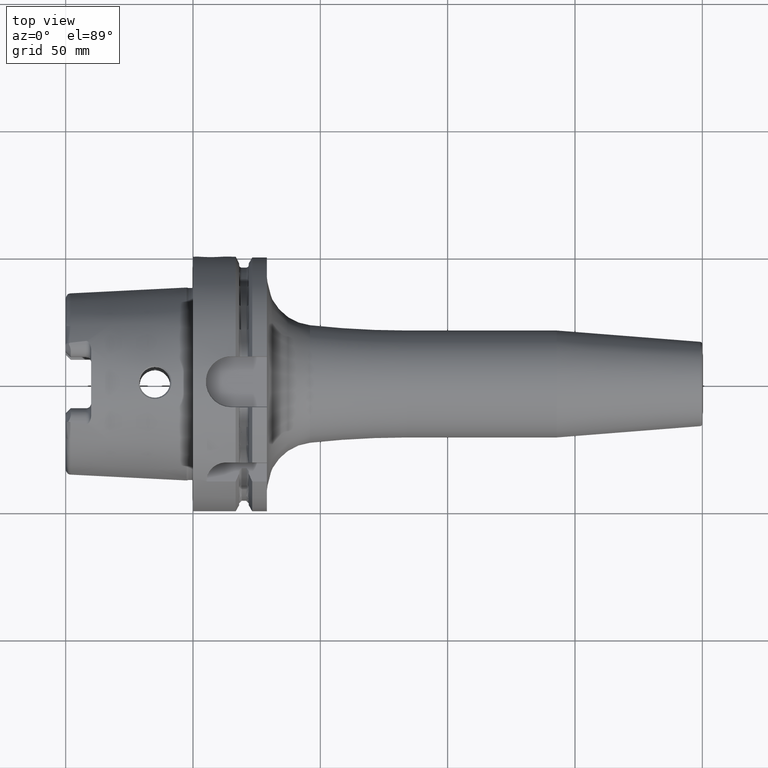
[diagram: clean part render]
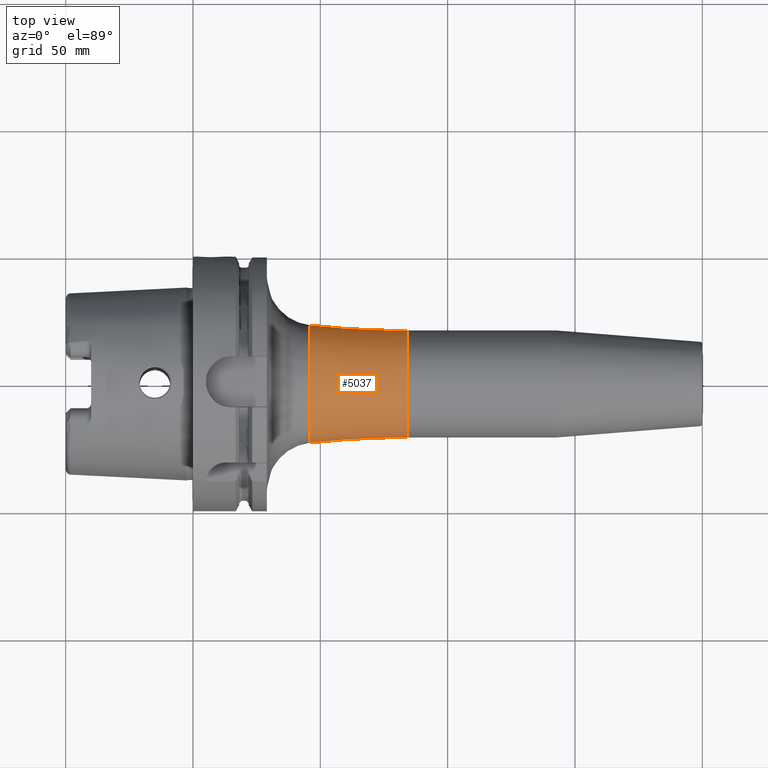
[diagram: same view with one face highlighted and labeled with its STEP entity id]
A machine part, top view. The second image highlights one B-rep face of the part: STEP entity #5037.
In plain terms, the highlighted toroidal blend (fillet) surface has major radius 371 mm and minor (blend) radius 350 mm.
Its self-contained STEP definition (entity closure, byte-faithful):
#1820=CARTESIAN_POINT('',(8.4E1,-3.71E2,-9.086879249673E-14));
#1821=DIRECTION('',(0.E0,0.E0,1.E0));
#1822=DIRECTION('',(0.E0,1.E0,0.E0));
#1823=AXIS2_PLACEMENT_3D('',#1820,#1821,#1822);
#1825=CARTESIAN_POINT('',(8.4E1,3.71E2,4.543439624837E-14));
#1826=DIRECTION('',(0.E0,0.E0,-1.E0));
#1827=DIRECTION('',(0.E0,-1.E0,0.E0));
#1828=AXIS2_PLACEMENT_3D('',#1825,#1826,#1827);
#1830=CARTESIAN_POINT('',(4.593353474320E1,0.E0,0.E0));
#1831=DIRECTION('',(1.E0,0.E0,0.E0));
#1832=DIRECTION('',(0.E0,1.E0,0.E0));
#1833=AXIS2_PLACEMENT_3D('',#1830,#1831,#1832);
#1840=CARTESIAN_POINT('',(8.4E1,0.E0,0.E0));
#1841=DIRECTION('',(1.E0,0.E0,0.E0));
#1842=DIRECTION('',(0.E0,1.E0,0.E0));
#1843=AXIS2_PLACEMENT_3D('',#1840,#1841,#1842);
#3165=CARTESIAN_POINT('',(4.593353474320E1,-2.307623791576E1,0.E0));
#3166=CARTESIAN_POINT('',(4.593353474320E1,2.307623791576E1,0.E0));
#3167=VERTEX_POINT('',#3165);
#3168=VERTEX_POINT('',#3166);
#3173=CARTESIAN_POINT('',(8.4E1,2.1E1,0.E0));
#3174=VERTEX_POINT('',#3173);
#3175=CARTESIAN_POINT('',(8.4E1,-2.1E1,0.E0));
#3176=VERTEX_POINT('',#3175);
#5024=CARTESIAN_POINT('',(8.4E1,0.E0,0.E0));
#5025=DIRECTION('',(1.E0,0.E0,0.E0));
#5026=DIRECTION('',(0.E0,-1.E0,0.E0));
#5027=AXIS2_PLACEMENT_3D('',#5024,#5025,#5026);
#5028=TOROIDAL_SURFACE('',#5027,3.71E2,3.5E2);
#5030=ORIENTED_EDGE('',*,*,#5029,.F.);
#5031=ORIENTED_EDGE('',*,*,#5019,.F.);
#5033=ORIENTED_EDGE('',*,*,#5032,.T.);
#5034=ORIENTED_EDGE('',*,*,#5015,.T.);
#5035=EDGE_LOOP('',(#5030,#5031,#5033,#5034));
#5036=FACE_OUTER_BOUND('',#5035,.F.);
#5037=ADVANCED_FACE('',(#5036),#5028,.F.);
#1824=CIRCLE('',#1823,3.5E2);
#1829=CIRCLE('',#1828,3.5E2);
#1834=CIRCLE('',#1833,2.307623791576E1);
#1844=CIRCLE('',#1843,2.1E1);
#5015=EDGE_CURVE('',#3176,#3167,#1824,.T.);
#5019=EDGE_CURVE('',#3174,#3168,#1829,.T.);
#5029=EDGE_CURVE('',#3168,#3167,#1834,.T.);
#5032=EDGE_CURVE('',#3174,#3176,#1844,.T.);